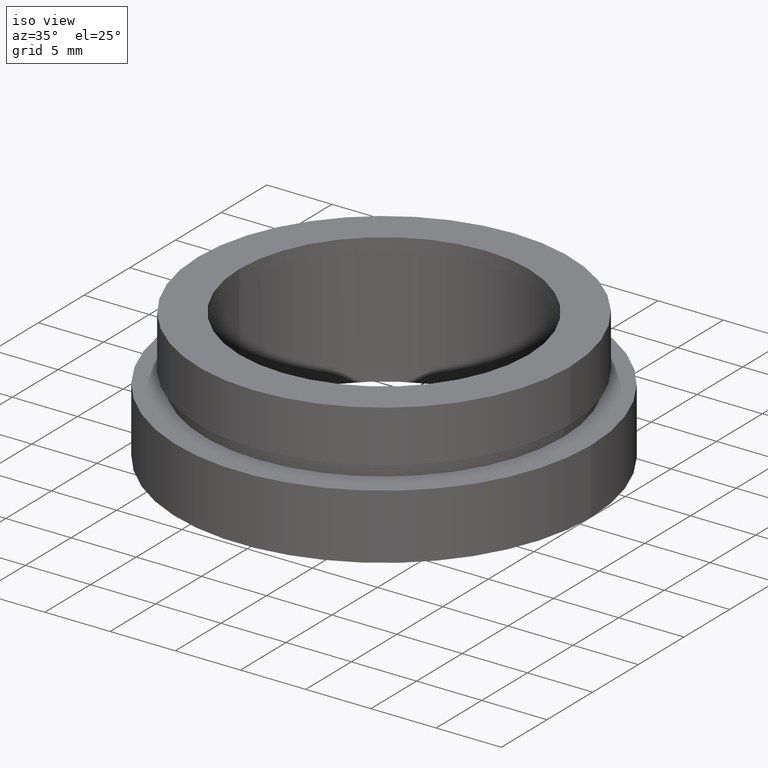
[diagram: clean part render]
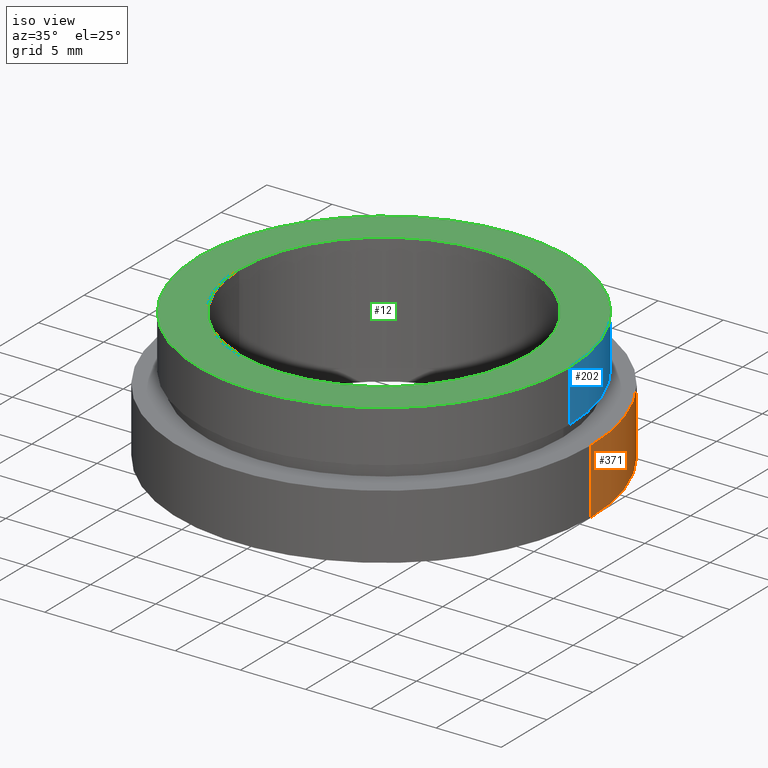
[diagram: same view with three faces highlighted in distinct colors, each labeled with its STEP entity id]
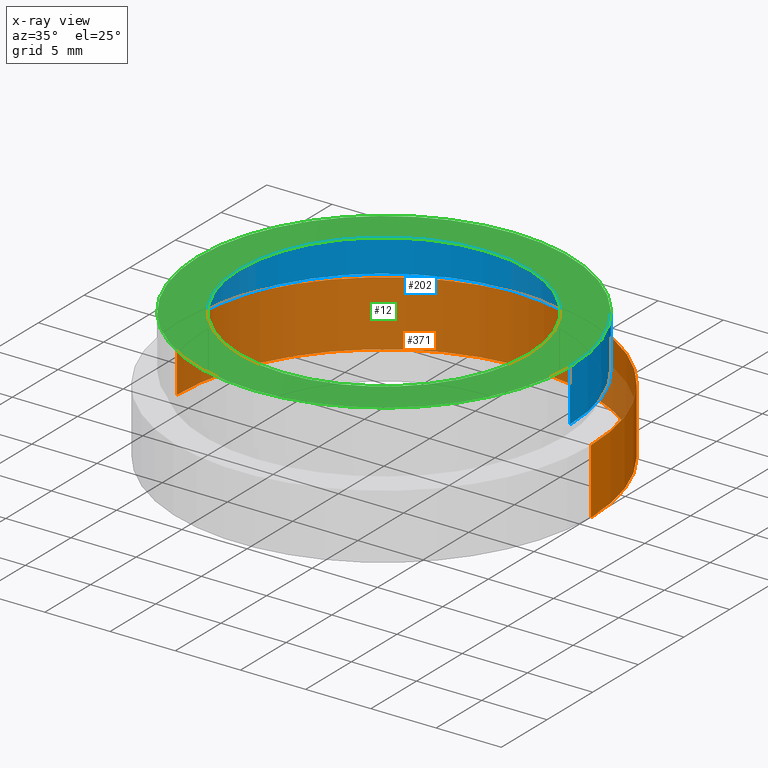
[diagram: x-ray of the same camera — body ghosted, the three highlighted faces saturated]
A machine part, iso view with three faces highlighted in distinct colors.
The next image is the same camera in x-ray (body ghosted, the three faces saturated) — at least one of them is partly hidden behind the body in this view.
Their STEP definitions:

[orange] entity #371 — the highlighted cylindrical surface (partial cylindrical patch) has radius 15.875 mm, axis along (-0, -0, -1).
#15 = AXIS2_PLACEMENT_3D ( 'NONE', #247, #76, #80 ) ;
#19 = EDGE_CURVE ( 'NONE', #187, #50, #142, .T. ) ;
#35 = DIRECTION ( 'NONE',  ( -0.0000000000000000000, -0.0000000000000000000, -1.000000000000000000 ) ) ;
#50 = VERTEX_POINT ( 'NONE', #352 ) ;
#75 = VERTEX_POINT ( 'NONE', #307 ) ;
#76 = DIRECTION ( 'NONE',  ( -0.0000000000000000000, -0.0000000000000000000, -1.000000000000000000 ) ) ;
#78 = VECTOR ( 'NONE', #289, 1000.000000000000000 ) ;
#80 = DIRECTION ( 'NONE',  ( -1.000000000000000000, 0.0000000000000000000, 0.0000000000000000000 ) ) ;
#87 = CARTESIAN_POINT ( 'NONE',  ( 0.0000000000000000000, 0.0000000000000000000, -19.14057971014493000 ) ) ;
#101 = ORIENTED_EDGE ( 'NONE', *, *, #349, .T. ) ;
#142 = LINE ( 'NONE', #157, #78 ) ;
#157 = CARTESIAN_POINT ( 'NONE',  ( 15.87500000000000000, 1.944126793646423200E-015, -19.14057971014493000 ) ) ;
#158 = CIRCLE ( 'NONE', #409, 15.87500000000000000 ) ;
#187 = VERTEX_POINT ( 'NONE', #258 ) ;
#213 = CARTESIAN_POINT ( 'NONE',  ( -15.87500000000000000, 0.0000000000000000000, -10.00000000000000000 ) ) ;
#223 = CARTESIAN_POINT ( 'NONE',  ( 0.0000000000000000000, 0.0000000000000000000, -10.00000000000000000 ) ) ;
#238 = EDGE_CURVE ( 'NONE', #75, #286, #291, .T. ) ;
#247 = CARTESIAN_POINT ( 'NONE',  ( 0.0000000000000000000, 0.0000000000000000000, -5.000000000000000900 ) ) ;
#258 = CARTESIAN_POINT ( 'NONE',  ( 15.87500000000000000, 1.944126793646423200E-015, -5.000000000000000900 ) ) ;
#263 = ORIENTED_EDGE ( 'NONE', *, *, #19, .T. ) ;
#271 = EDGE_LOOP ( 'NONE', ( #101, #263, #298, #354 ) ) ;
#273 = DIRECTION ( 'NONE',  ( -1.000000000000000000, 0.0000000000000000000, 0.0000000000000000000 ) ) ;
#283 = DIRECTION ( 'NONE',  ( -0.0000000000000000000, -0.0000000000000000000, -1.000000000000000000 ) ) ;
#285 = AXIS2_PLACEMENT_3D ( 'NONE', #87, #283, #339 ) ;
#286 = VERTEX_POINT ( 'NONE', #213 ) ;
#289 = DIRECTION ( 'NONE',  ( -0.0000000000000000000, -0.0000000000000000000, -1.000000000000000000 ) ) ;
#291 = LINE ( 'NONE', #345, #337 ) ;
#298 = ORIENTED_EDGE ( 'NONE', *, *, #322, .F. ) ;
#307 = CARTESIAN_POINT ( 'NONE',  ( -15.87500000000000000, 0.0000000000000000000, -5.000000000000000900 ) ) ;
#321 = FACE_OUTER_BOUND ( 'NONE', #271, .T. ) ;
#322 = EDGE_CURVE ( 'NONE', #286, #50, #158, .T. ) ;
#335 = DIRECTION ( 'NONE',  ( -0.0000000000000000000, -0.0000000000000000000, -1.000000000000000000 ) ) ;
#337 = VECTOR ( 'NONE', #335, 1000.000000000000000 ) ;
#338 = CIRCLE ( 'NONE', #15, 15.87500000000000000 ) ;
#339 = DIRECTION ( 'NONE',  ( -1.000000000000000000, 0.0000000000000000000, 0.0000000000000000000 ) ) ;
#345 = CARTESIAN_POINT ( 'NONE',  ( -15.87500000000000000, 0.0000000000000000000, -19.14057971014493000 ) ) ;
#349 = EDGE_CURVE ( 'NONE', #75, #187, #338, .T. ) ;
#352 = CARTESIAN_POINT ( 'NONE',  ( 15.87500000000000000, 1.944126793646423200E-015, -10.00000000000000000 ) ) ;
#354 = ORIENTED_EDGE ( 'NONE', *, *, #238, .F. ) ;
#371 = ADVANCED_FACE ( 'NONE', ( #321 ), #418, .T. ) ;
#409 = AXIS2_PLACEMENT_3D ( 'NONE', #223, #35, #273 ) ;
#418 = CYLINDRICAL_SURFACE ( 'NONE', #285, 15.87500000000000000 ) ;

[blue] entity #202 — the highlighted cylindrical surface (partial cylindrical patch) has radius 14.25 mm, axis along (-0, -0, -1).
#10 = AXIS2_PLACEMENT_3D ( 'NONE', #161, #222, #376 ) ;
#11 = DIRECTION ( 'NONE',  ( -1.000000000000000000, 0.0000000000000000000, 0.0000000000000000000 ) ) ;
#22 = ORIENTED_EDGE ( 'NONE', *, *, #381, .T. ) ;
#28 = DIRECTION ( 'NONE',  ( -0.0000000000000000000, -0.0000000000000000000, -1.000000000000000000 ) ) ;
#46 = CARTESIAN_POINT ( 'NONE',  ( -14.25000000000000400, 0.0000000000000000000, -19.14057971014493000 ) ) ;
#84 = EDGE_CURVE ( 'NONE', #272, #145, #259, .T. ) ;
#88 = CARTESIAN_POINT ( 'NONE',  ( 0.0000000000000000000, 0.0000000000000000000, 0.0000000000000000000 ) ) ;
#103 = CARTESIAN_POINT ( 'NONE',  ( 14.25000000000000400, 1.745121688784978600E-015, 0.0000000000000000000 ) ) ;
#109 = VERTEX_POINT ( 'NONE', #139 ) ;
#111 = DIRECTION ( 'NONE',  ( -0.0000000000000000000, -0.0000000000000000000, -1.000000000000000000 ) ) ;
#113 = CARTESIAN_POINT ( 'NONE',  ( 14.25000000000000400, 1.745121688784978600E-015, -4.000000000000000000 ) ) ;
#116 = FACE_OUTER_BOUND ( 'NONE', #420, .T. ) ;
#139 = CARTESIAN_POINT ( 'NONE',  ( -14.25000000000000400, 0.0000000000000000000, 0.0000000000000000000 ) ) ;
#144 = EDGE_CURVE ( 'NONE', #109, #287, #388, .T. ) ;
#145 = VERTEX_POINT ( 'NONE', #113 ) ;
#161 = CARTESIAN_POINT ( 'NONE',  ( 0.0000000000000000000, 0.0000000000000000000, -4.000000000000000000 ) ) ;
#198 = ORIENTED_EDGE ( 'NONE', *, *, #255, .F. ) ;
#202 = ADVANCED_FACE ( 'NONE', ( #116 ), #270, .T. ) ;
#216 = AXIS2_PLACEMENT_3D ( 'NONE', #88, #279, #11 ) ;
#222 = DIRECTION ( 'NONE',  ( -0.0000000000000000000, -0.0000000000000000000, -1.000000000000000000 ) ) ;
#255 = EDGE_CURVE ( 'NONE', #287, #145, #257, .T. ) ;
#257 = CIRCLE ( 'NONE', #10, 14.25000000000000400 ) ;
#259 = LINE ( 'NONE', #366, #308 ) ;
#268 = CIRCLE ( 'NONE', #216, 14.25000000000000400 ) ;
#270 = CYLINDRICAL_SURFACE ( 'NONE', #369, 14.25000000000000400 ) ;
#272 = VERTEX_POINT ( 'NONE', #103 ) ;
#279 = DIRECTION ( 'NONE',  ( -0.0000000000000000000, -0.0000000000000000000, -1.000000000000000000 ) ) ;
#280 = ORIENTED_EDGE ( 'NONE', *, *, #144, .F. ) ;
#287 = VERTEX_POINT ( 'NONE', #368 ) ;
#303 = DIRECTION ( 'NONE',  ( -0.0000000000000000000, -0.0000000000000000000, -1.000000000000000000 ) ) ;
#308 = VECTOR ( 'NONE', #303, 1000.000000000000000 ) ;
#355 = CARTESIAN_POINT ( 'NONE',  ( 0.0000000000000000000, 0.0000000000000000000, -19.14057971014493000 ) ) ;
#357 = DIRECTION ( 'NONE',  ( -1.000000000000000000, 0.0000000000000000000, 0.0000000000000000000 ) ) ;
#366 = CARTESIAN_POINT ( 'NONE',  ( 14.25000000000000400, 1.745121688784978600E-015, -19.14057971014493000 ) ) ;
#367 = ORIENTED_EDGE ( 'NONE', *, *, #84, .T. ) ;
#368 = CARTESIAN_POINT ( 'NONE',  ( -14.25000000000000400, 0.0000000000000000000, -4.000000000000000000 ) ) ;
#369 = AXIS2_PLACEMENT_3D ( 'NONE', #355, #111, #357 ) ;
#376 = DIRECTION ( 'NONE',  ( -1.000000000000000000, 0.0000000000000000000, 0.0000000000000000000 ) ) ;
#381 = EDGE_CURVE ( 'NONE', #109, #272, #268, .T. ) ;
#388 = LINE ( 'NONE', #46, #428 ) ;
#420 = EDGE_LOOP ( 'NONE', ( #22, #367, #198, #280 ) ) ;
#428 = VECTOR ( 'NONE', #28, 1000.000000000000000 ) ;

[green] entity #12 — the highlighted planar face has unit normal (-0, 0, -1).
#3 = ORIENTED_EDGE ( 'NONE', *, *, #24, .T. ) ;
#5 = CIRCLE ( 'NONE', #276, 11.10000000000000100 ) ;
#11 = DIRECTION ( 'NONE',  ( -1.000000000000000000, 0.0000000000000000000, 0.0000000000000000000 ) ) ;
#12 = ADVANCED_FACE ( 'NONE', ( #364, #313 ), #172, .F. ) ;
#13 = AXIS2_PLACEMENT_3D ( 'NONE', #323, #265, #386 ) ;
#14 = ORIENTED_EDGE ( 'NONE', *, *, #381, .F. ) ;
#24 = EDGE_CURVE ( 'NONE', #400, #156, #5, .T. ) ;
#36 = DIRECTION ( 'NONE',  ( -0.0000000000000000000, -0.0000000000000000000, -1.000000000000000000 ) ) ;
#74 = DIRECTION ( 'NONE',  ( -1.000000000000000000, 0.0000000000000000000, 0.0000000000000000000 ) ) ;
#88 = CARTESIAN_POINT ( 'NONE',  ( 0.0000000000000000000, 0.0000000000000000000, 0.0000000000000000000 ) ) ;
#103 = CARTESIAN_POINT ( 'NONE',  ( 14.25000000000000400, 1.745121688784978600E-015, 0.0000000000000000000 ) ) ;
#109 = VERTEX_POINT ( 'NONE', #139 ) ;
#124 = EDGE_CURVE ( 'NONE', #272, #109, #343, .T. ) ;
#136 = AXIS2_PLACEMENT_3D ( 'NONE', #250, #375, #74 ) ;
#139 = CARTESIAN_POINT ( 'NONE',  ( -14.25000000000000400, 0.0000000000000000000, 0.0000000000000000000 ) ) ;
#140 = DIRECTION ( 'NONE',  ( -1.000000000000000000, 0.0000000000000000000, 0.0000000000000000000 ) ) ;
#155 = EDGE_LOOP ( 'NONE', ( #14, #353 ) ) ;
#156 = VERTEX_POINT ( 'NONE', #408 ) ;
#172 = PLANE ( 'NONE',  #13 ) ;
#176 = EDGE_CURVE ( 'NONE', #156, #400, #183, .T. ) ;
#183 = CIRCLE ( 'NONE', #136, 11.10000000000000100 ) ;
#186 = ORIENTED_EDGE ( 'NONE', *, *, #176, .T. ) ;
#195 = AXIS2_PLACEMENT_3D ( 'NONE', #425, #430, #432 ) ;
#216 = AXIS2_PLACEMENT_3D ( 'NONE', #88, #279, #11 ) ;
#250 = CARTESIAN_POINT ( 'NONE',  ( 0.0000000000000000000, 0.0000000000000000000, 0.0000000000000000000 ) ) ;
#265 = DIRECTION ( 'NONE',  ( -0.0000000000000000000, 0.0000000000000000000, -1.000000000000000000 ) ) ;
#268 = CIRCLE ( 'NONE', #216, 14.25000000000000400 ) ;
#272 = VERTEX_POINT ( 'NONE', #103 ) ;
#276 = AXIS2_PLACEMENT_3D ( 'NONE', #422, #36, #140 ) ;
#279 = DIRECTION ( 'NONE',  ( -0.0000000000000000000, -0.0000000000000000000, -1.000000000000000000 ) ) ;
#313 = FACE_BOUND ( 'NONE', #333, .T. ) ;
#323 = CARTESIAN_POINT ( 'NONE',  ( 11.10000000000000100, 0.0000000000000000000, 0.0000000000000000000 ) ) ;
#333 = EDGE_LOOP ( 'NONE', ( #3, #186 ) ) ;
#343 = CIRCLE ( 'NONE', #195, 14.25000000000000400 ) ;
#353 = ORIENTED_EDGE ( 'NONE', *, *, #124, .F. ) ;
#360 = CARTESIAN_POINT ( 'NONE',  ( -11.10000000000000100, 0.0000000000000000000, 0.0000000000000000000 ) ) ;
#364 = FACE_OUTER_BOUND ( 'NONE', #155, .T. ) ;
#375 = DIRECTION ( 'NONE',  ( -0.0000000000000000000, -0.0000000000000000000, -1.000000000000000000 ) ) ;
#381 = EDGE_CURVE ( 'NONE', #109, #272, #268, .T. ) ;
#386 = DIRECTION ( 'NONE',  ( -1.000000000000000000, 0.0000000000000000000, 0.0000000000000000000 ) ) ;
#400 = VERTEX_POINT ( 'NONE', #360 ) ;
#408 = CARTESIAN_POINT ( 'NONE',  ( 11.10000000000000100, 1.359357947053562400E-015, 0.0000000000000000000 ) ) ;
#422 = CARTESIAN_POINT ( 'NONE',  ( 0.0000000000000000000, 0.0000000000000000000, 0.0000000000000000000 ) ) ;
#425 = CARTESIAN_POINT ( 'NONE',  ( 0.0000000000000000000, 0.0000000000000000000, 0.0000000000000000000 ) ) ;
#430 = DIRECTION ( 'NONE',  ( -0.0000000000000000000, -0.0000000000000000000, -1.000000000000000000 ) ) ;
#432 = DIRECTION ( 'NONE',  ( -1.000000000000000000, 0.0000000000000000000, 0.0000000000000000000 ) ) ;